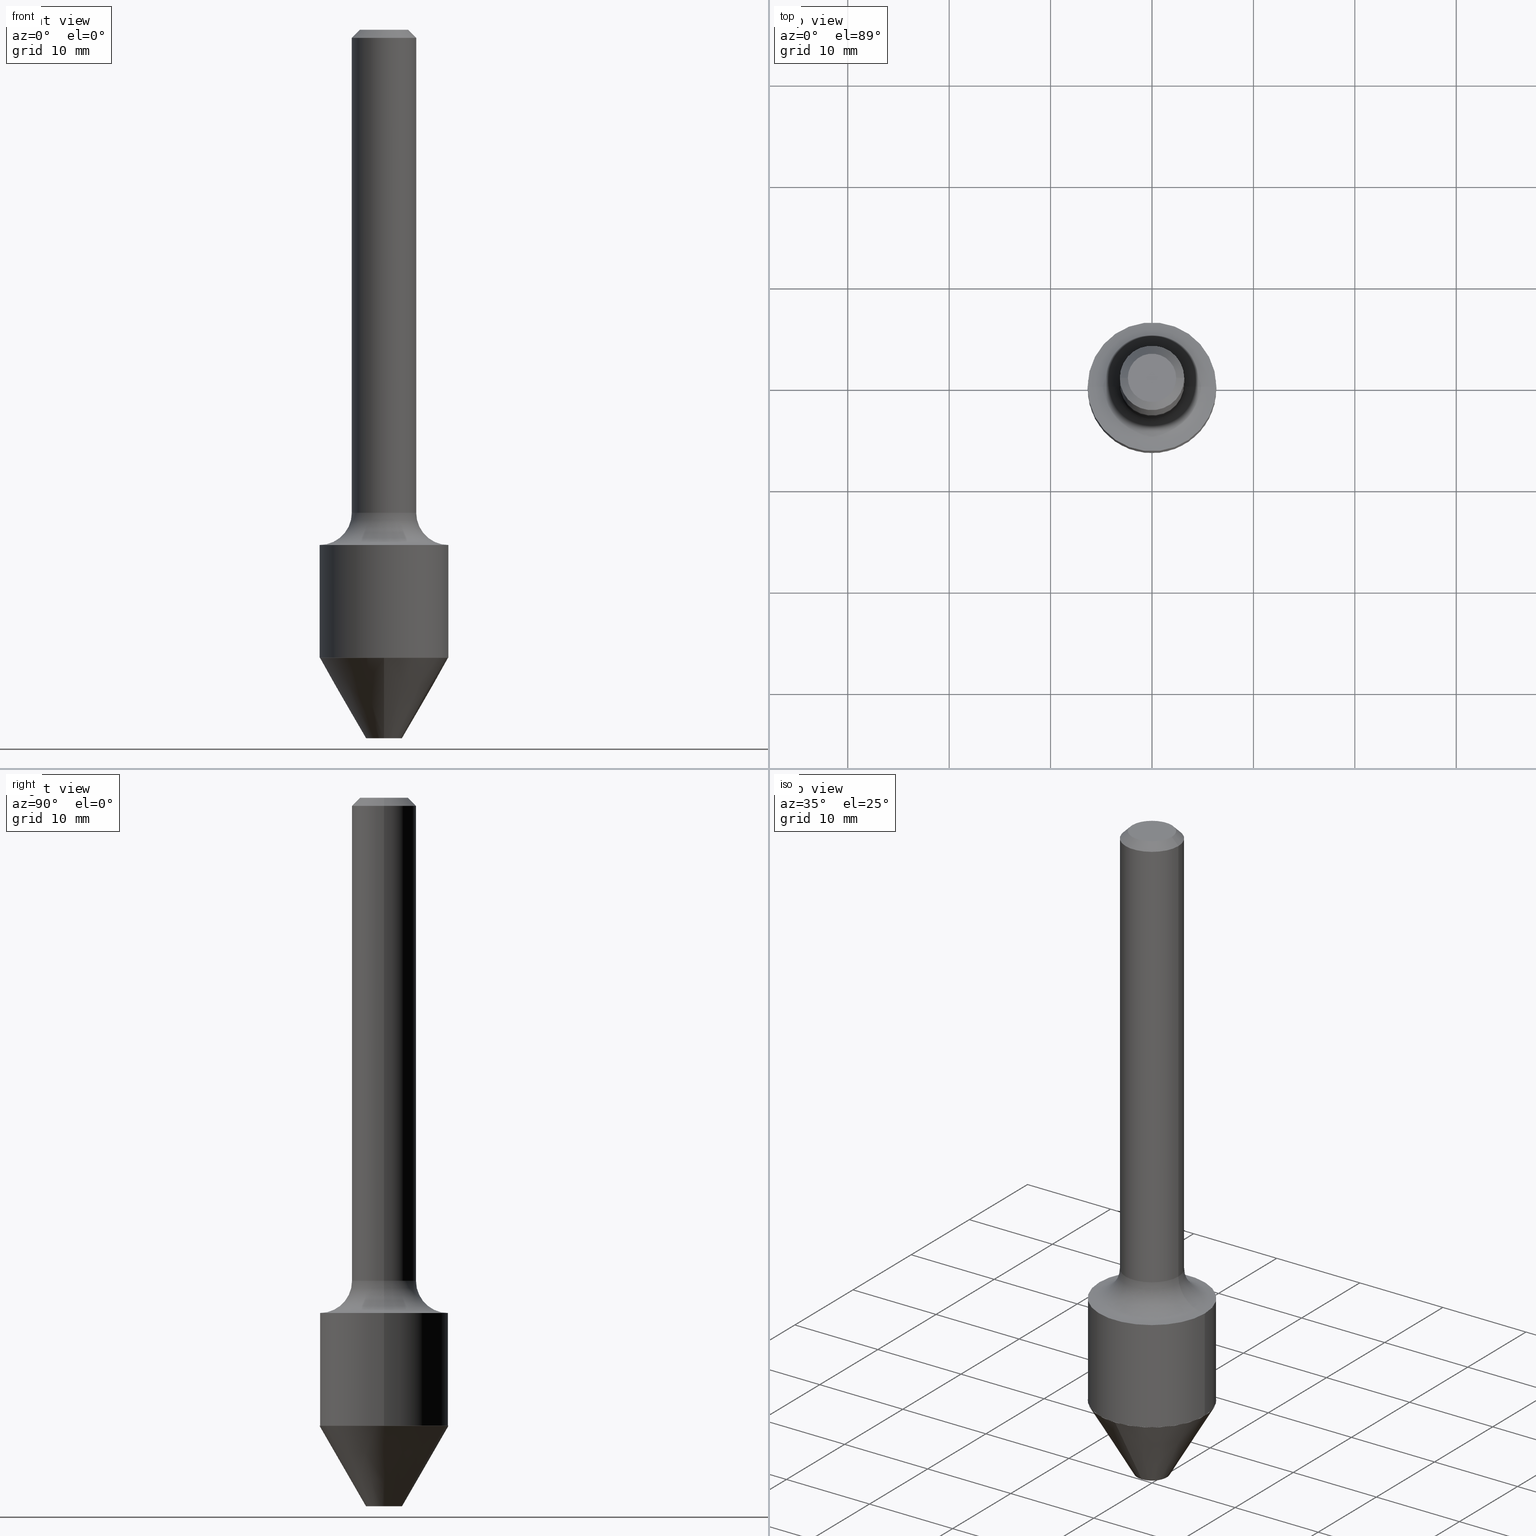
[diagram: canonical four-view strip — front | top / right | iso, engineering-drawing reading convention]
A machine part, canonical four-view strip (front | top / right | iso — engineering-drawing reading convention). The complete STEP part file that produces these views, byte-faithful:
ISO-10303-21;
HEADER;
FILE_DESCRIPTION (( 'STEP AP203' ),
    '1' );
FILE_NAME ('74161.STEP',
    '2025-06-20T12:29:18',
    ( '' ),
    ( '' ),
    'SwSTEP 2.0',
    'SolidWorks 2024',
    '' );
FILE_SCHEMA (( 'CONFIG_CONTROL_DESIGN' ));
ENDSEC;

DATA;
#1 = DIRECTION ( 'NONE',  ( 1.000000000000000000, -6.982962677686269077E-15, 4.883557194083112901E-29 ) ) ;
#2 = VERTEX_POINT ( 'NONE', #326 ) ;
#3 = CYLINDRICAL_SURFACE ( 'NONE', #356, 0.1250000000000001110 ) ;
#4 = CARTESIAN_POINT ( 'NONE',  ( 0.000000000000000000, 0.000000000000000000, 0.000000000000000000 ) ) ;
#5 = CIRCLE ( 'NONE', #360, 0.2499999999999999722 ) ;
#6 = EDGE_CURVE ( 'NONE', #411, #233, #375, .T. ) ;
#7 = CARTESIAN_POINT ( 'NONE',  ( 0.2500000000000000000, -8.728703347107857054E-15, -1.999999999999999778 ) ) ;
#8 = PERSON_AND_ORGANIZATION ( #138, #330 ) ;
#9 = CARTESIAN_POINT ( 'NONE',  ( -0.1250000000000000000, 7.639361169388764871E-16, -0.03120000000000019980 ) ) ;
#10 = LOCAL_TIME ( 8, 29, 18.00000000000000000, #97 ) ;
#11 = CARTESIAN_POINT ( 'NONE',  ( -0.2494999999999999718, -6.735838435193878049E-15, -2.437730854637629729 ) ) ;
#12 = CARTESIAN_POINT ( 'NONE',  ( 7.629862675297674822E-31, -1.089342177719068394E-16, -0.03120000000000019980 ) ) ;
#13 = CALENDAR_DATE ( 2025, 20, 6 ) ;
#14 = DIRECTION ( 'NONE',  ( 1.000000000000000000, -6.982962677686266711E-15, 4.876176775795935793E-29 ) ) ;
#15 = AXIS2_PLACEMENT_3D ( 'NONE', #302, #289, #132 ) ;
#16 = VECTOR ( 'NONE', #380, 39.37007874015748143 ) ;
#17 = CARTESIAN_POINT ( 'NONE',  ( 4.585254011597131119E-29, -6.546527510330898707E-15, -1.875000000000000000 ) ) ;
#18 = DIRECTION ( 'NONE',  ( -6.982962677686265922E-15, -1.000000000000000000, 0.000000000000000000 ) ) ;
#19 = ADVANCED_FACE ( 'NONE', ( #46 ), #3, .T. ) ;
#20 = AXIS2_PLACEMENT_3D ( 'NONE', #86, #247, #207 ) ;
#21 = DIRECTION ( 'NONE',  ( -6.982962677686266711E-15, -1.000000000000000000, 3.284787166730576226E-15 ) ) ;
#22 = FACE_OUTER_BOUND ( 'NONE', #354, .T. ) ;
#23 = CIRCLE ( 'NONE', #156, 0.2499999999999999722 ) ;
#24 = EDGE_CURVE ( 'NONE', #269, #437, #61, .T. ) ;
#25 = APPROVAL_ROLE ( '' ) ;
#26 = ORIENTED_EDGE ( 'NONE', *, *, #218, .T. ) ;
#27 = DIRECTION ( 'NONE',  ( -2.445468806185136597E-29, 3.491481338843145583E-15, 1.000000000000000000 ) ) ;
#28 = CARTESIAN_POINT ( 'NONE',  ( -0.2500000000000000000, -5.206605838286039123E-15, -1.999999999999999778 ) ) ;
#29 = VERTEX_POINT ( 'NONE', #447 ) ;
#30 = ORIENTED_EDGE ( 'NONE', *, *, #487, .F. ) ;
#31 = CARTESIAN_POINT ( 'NONE',  ( -1.713409374943379590E-15, -0.2495000000000086038, -2.437730854637629285 ) ) ;
#32 = AXIS2_PLACEMENT_3D ( 'NONE', #200, #165, #325 ) ;
#33 = ORIENTED_EDGE ( 'NONE', *, *, #175, .F. ) ;
#34 = ORIENTED_EDGE ( 'NONE', *, *, #344, .T. ) ;
#35 = ADVANCED_FACE ( 'NONE', ( #81 ), #440, .T. ) ;
#36 = CARTESIAN_POINT ( 'NONE',  ( 0.1250000000000002498, -7.419397845041683624E-15, -1.875000000000000000 ) ) ;
#37 = ORIENTED_EDGE ( 'NONE', *, *, #6, .F. ) ;
#38 = DIRECTION ( 'NONE',  ( 1.000000000000000000, -6.982962677686267499E-15, 4.876176775795936353E-29 ) ) ;
#39 = CONICAL_SURFACE ( 'NONE', #272, 0.2495000000000000551, 0.7853981633963555975 ) ;
#40 = COORDINATED_UNIVERSAL_TIME_OFFSET ( 5, 0, .BEHIND. ) ;
#41 = CARTESIAN_POINT ( 'NONE',  ( -0.2500000000000000000, -4.770170670930647453E-15, -1.875000000000000000 ) ) ;
#42 = ORIENTED_EDGE ( 'NONE', *, *, #225, .F. ) ;
#43 = DIRECTION ( 'NONE',  ( -6.982962677686265922E-15, -1.000000000000000000, 0.000000000000000000 ) ) ;
#44 = AXIS2_PLACEMENT_3D ( 'NONE', #204, #474, #445 ) ;
#45 = DIRECTION ( 'NONE',  ( -1.000000000000000000, 7.105427357601001859E-15, 0.000000000000000000 ) ) ;
#46 = FACE_OUTER_BOUND ( 'NONE', #158, .T. ) ;
#47 = ORIENTED_EDGE ( 'NONE', *, *, #392, .F. ) ;
#48 = AXIS2_PLACEMENT_3D ( 'NONE', #264, #425, #507 ) ;
#49 = LINE ( 'NONE', #376, #142 ) ;
#50 = DIMENSIONAL_EXPONENTS ( 1.000000000000000000, 0.000000000000000000, 0.000000000000000000, 0.000000000000000000, 0.000000000000000000, 0.000000000000000000, 0.000000000000000000 ) ;
#51 = VECTOR ( 'NONE', #320, 39.37007874015748143 ) ;
#52 = COORDINATED_UNIVERSAL_TIME_OFFSET ( 5, 0, .BEHIND. ) ;
#53 = FACE_OUTER_BOUND ( 'NONE', #54, .T. ) ;
#54 = EDGE_LOOP ( 'NONE', ( #515, #182, #37, #232 ) ) ;
#55 = DIRECTION ( 'NONE',  ( -6.982962677686265922E-15, -1.000000000000000000, 3.278217592397119806E-15 ) ) ;
#56 = VECTOR ( 'NONE', #328, 39.37007874015748143 ) ;
#57 = EDGE_CURVE ( 'NONE', #437, #269, #211, .T. ) ;
#58 = CARTESIAN_POINT ( 'NONE',  ( 0.2494999999999999718, -1.025354097617216170E-14, -2.437730854637629729 ) ) ;
#59 = APPROVAL_STATUS ( 'not_yet_approved' ) ;
#60 = CIRCLE ( 'NONE', #70, 0.07000000000000006217 ) ;
#61 = CIRCLE ( 'NONE', #489, 0.09379999999999999449 ) ;
#62 = DIRECTION ( 'NONE',  ( -2.445468806185136597E-29, 3.491481338843145583E-15, 1.000000000000000000 ) ) ;
#63 = EDGE_CURVE ( 'NONE', #233, #411, #303, .T. ) ;
#64 = ORIENTED_EDGE ( 'NONE', *, *, #171, .F. ) ;
#65 = LINE ( 'NONE', #497, #297 ) ;
#66 = CIRCLE ( 'NONE', #377, 0.1250000000000000000 ) ;
#67 = FACE_OUTER_BOUND ( 'NONE', #350, .T. ) ;
#68 = VERTEX_POINT ( 'NONE', #478 ) ;
#69 = DIRECTION ( 'NONE',  ( -2.438088387897960049E-29, 3.491481338843145188E-15, 1.000000000000000000 ) ) ;
#70 = AXIS2_PLACEMENT_3D ( 'NONE', #243, #405, #43 ) ;
#71 = ORIENTED_EDGE ( 'NONE', *, *, #112, .T. ) ;
#72 = EDGE_CURVE ( 'NONE', #29, #471, #162, .T. ) ;
#73 = AXIS2_PLACEMENT_3D ( 'NONE', #17, #453, #491 ) ;
#74 = EDGE_LOOP ( 'NONE', ( #313, #304, #511, #462 ) ) ;
#75 = EDGE_CURVE ( 'NONE', #399, #2, #185, .T. ) ;
#76 = ORIENTED_EDGE ( 'NONE', *, *, #250, .T. ) ;
#77 = CARTESIAN_POINT ( 'NONE',  ( -0.2499999999999999722, -5.969897523152902591E-15, -2.437230854637630006 ) ) ;
#78 = EDGE_CURVE ( 'NONE', #123, #399, #336, .T. ) ;
#79 = CARTESIAN_POINT ( 'NONE',  ( 5.960172028488266116E-29, -8.509546047420017313E-15, -2.437230854637630006 ) ) ;
#80 = ORIENTED_EDGE ( 'NONE', *, *, #487, .T. ) ;
#81 = FACE_OUTER_BOUND ( 'NONE', #457, .T. ) ;
#82 = LINE ( 'NONE', #322, #124 ) ;
#83 = DIRECTION ( 'NONE',  ( -2.445468806185136597E-29, 3.491481338843145583E-15, 1.000000000000000000 ) ) ;
#84 = DESIGN_CONTEXT ( 'detailed design', #431, 'design' ) ;
#85 = LOCAL_TIME ( 8, 29, 18.00000000000000000, #52 ) ;
#86 = CARTESIAN_POINT ( 'NONE',  ( 5.939504430515662560E-29, -8.542639989971778018E-15, -2.437730854637629729 ) ) ;
#87 = CARTESIAN_POINT ( 'NONE',  ( 4.890937612370272633E-29, -6.982962677686290376E-15, -1.999999999999999778 ) ) ;
#88 = APPROVAL_DATE_TIME ( #287, #179 ) ;
#89 = PERSON_AND_ORGANIZATION ( #138, #330 ) ;
#90 = DIRECTION ( 'NONE',  ( -2.445468806185136597E-29, 3.491481338843145583E-15, 1.000000000000000000 ) ) ;
#91 = CARTESIAN_POINT ( 'NONE',  ( 4.585254011597131119E-29, -6.546527510330898707E-15, -1.875000000000000000 ) ) ;
#92 = VECTOR ( 'NONE', #386, 39.37007874015748143 ) ;
#93 = COORDINATED_UNIVERSAL_TIME_OFFSET ( 5, 0, .BEHIND. ) ;
#94 = CALENDAR_DATE ( 2025, 20, 6 ) ;
#95 = ORIENTED_EDGE ( 'NONE', *, *, #140, .F. ) ;
#96 = DIRECTION ( 'NONE',  ( -1.000000000000000000, 6.982962677686265922E-15, -4.876176775795935793E-29 ) ) ;
#97 = COORDINATED_UNIVERSAL_TIME_OFFSET ( 5, 0, .BEHIND. ) ;
#98 = FACE_OUTER_BOUND ( 'NONE', #310, .T. ) ;
#99 = CIRCLE ( 'NONE', #492, 0.1250000000000000000 ) ;
#100 = PLANE ( 'NONE',  #231 ) ;
#101 = ORIENTED_EDGE ( 'NONE', *, *, #112, .F. ) ;
#102 = APPROVAL_PERSON_ORGANIZATION ( #249, #179, #176 ) ;
#103 = DIRECTION ( 'NONE',  ( -2.445468806185136597E-29, 3.491481338843145583E-15, 1.000000000000000000 ) ) ;
#104 = FACE_OUTER_BOUND ( 'NONE', #470, .T. ) ;
#105 = DIRECTION ( 'NONE',  ( -2.534660151122198642E-29, 3.363754256437179045E-15, 1.000000000000000000 ) ) ;
#106 = CC_DESIGN_PERSON_AND_ORGANIZATION_ASSIGNMENT ( #198, #362, ( #349 ) ) ;
#107 = AXIS2_PLACEMENT_3D ( 'NONE', #502, #27, #223 ) ;
#108 = ORIENTED_EDGE ( 'NONE', *, *, #57, .F. ) ;
#109 = DIRECTION ( 'NONE',  ( -2.445468806185136597E-29, 3.491481338843145583E-15, 1.000000000000000000 ) ) ;
#110 = ORIENTED_EDGE ( 'NONE', *, *, #171, .T. ) ;
#111 = AXIS2_PLACEMENT_3D ( 'NONE', #4, #170, #291 ) ;
#112 = EDGE_CURVE ( 'NONE', #68, #29, #467, .T. ) ;
#113 = ORIENTED_EDGE ( 'NONE', *, *, #299, .F. ) ;
#114 = CIRCLE ( 'NONE', #466, 0.1249999999999996947 ) ;
#115 = CIRCLE ( 'NONE', #414, 0.2495000000000000551 ) ;
#116 = ORIENTED_EDGE ( 'NONE', *, *, #398, .F. ) ;
#117 = EDGE_CURVE ( 'NONE', #351, #233, #504, .T. ) ;
#118 = ORIENTED_EDGE ( 'NONE', *, *, #78, .T. ) ;
#119 = FACE_OUTER_BOUND ( 'NONE', #228, .T. ) ;
#120 = ORIENTED_EDGE ( 'NONE', *, *, #436, .T. ) ;
#121 = LENGTH_MEASURE_WITH_UNIT ( LENGTH_MEASURE( 0.02539999999999999897 ), #479 );
#122 = COORDINATED_UNIVERSAL_TIME_OFFSET ( 5, 0, .BEHIND. ) ;
#123 = VERTEX_POINT ( 'NONE', #347 ) ;
#124 = VECTOR ( 'NONE', #252, 39.37007874015748143 ) ;
#125 = DIRECTION ( 'NONE',  ( -2.445468806185136597E-29, 3.491481338843145583E-15, 1.000000000000000000 ) ) ;
#126 = CALENDAR_DATE ( 2025, 20, 6 ) ;
#127 = ADVANCED_FACE ( 'NONE', ( #98 ), #39, .T. ) ;
#128 = CARTESIAN_POINT ( 'NONE',  ( 7.629862675297674822E-31, -1.089342177719068394E-16, -0.03120000000000019980 ) ) ;
#129 = DIRECTION ( 'NONE',  ( 0.7071067811865454633, -7.319954787623248157E-15, -0.7071067811865495711 ) ) ;
#130 = APPROVAL ( #59, 'UNSPECIFIED' ) ;
#131 = ADVANCED_BREP_SHAPE_REPRESENTATION ( '74161', ( #366, #194, #111 ), #341 ) ;
#132 = DIRECTION ( 'NONE',  ( 6.982962677686265922E-15, 1.000000000000000000, -3.363754256437178651E-15 ) ) ;
#133 = AXIS2_PLACEMENT_3D ( 'NONE', #430, #69, #391 ) ;
#134 = EDGE_CURVE ( 'NONE', #471, #191, #150, .T. ) ;
#135 = APPROVAL_DATE_TIME ( #495, #130 ) ;
#136 = ORIENTED_EDGE ( 'NONE', *, *, #317, .F. ) ;
#137 = DIRECTION ( 'NONE',  ( 3.552713678800711555E-15, 0.5000000000000357492, 0.8660254037844178354 ) ) ;
#138 = PERSON ( 'UNSPECIFIED', 'UNSPECIFIED', 'UNSPECIFIED', ('UNSPECIFIED'), ('UNSPECIFIED'), ('UNSPECIFIED') ) ;
#139 = DIRECTION ( 'NONE',  ( 1.000000000000000000, -6.982962677686267499E-15, 0.000000000000000000 ) ) ;
#140 = EDGE_CURVE ( 'NONE', #435, #363, #115, .T. ) ;
#141 = CARTESIAN_POINT ( 'NONE',  ( -0.2500000000000000000, 1.776356839400250465E-15, -1.229733772563726445E-29 ) ) ;
#142 = VECTOR ( 'NONE', #419, 39.37007874015748143 ) ;
#143 = ORIENTED_EDGE ( 'NONE', *, *, #318, .T. ) ;
#144 = LINE ( 'NONE', #338, #516 ) ;
#145 = ORIENTED_EDGE ( 'NONE', *, *, #505, .T. ) ;
#146 = FACE_OUTER_BOUND ( 'NONE', #151, .T. ) ;
#147 = CYLINDRICAL_SURFACE ( 'NONE', #282, 0.2500000000000000000 ) ;
#148 = ORIENTED_EDGE ( 'NONE', *, *, #218, .F. ) ;
#149 = VECTOR ( 'NONE', #275, 39.37007874015748143 ) ;
#150 = CIRCLE ( 'NONE', #394, 0.2499999999999996947 ) ;
#151 = EDGE_LOOP ( 'NONE', ( #513, #76, #357, #468 ) ) ;
#152 = EDGE_CURVE ( 'NONE', #191, #471, #222, .T. ) ;
#153 = VERTEX_POINT ( 'NONE', #506 ) ;
#154 = ADVANCED_FACE ( 'NONE', ( #146 ), #181, .T. ) ;
#155 = EDGE_LOOP ( 'NONE', ( #143, #34, #315, #509 ) ) ;
#156 = AXIS2_PLACEMENT_3D ( 'NONE', #79, #276, #196 ) ;
#157 = CARTESIAN_POINT ( 'NONE',  ( 0.2494999999999999718, -1.025354097617216170E-14, -2.437730854637629729 ) ) ;
#158 = EDGE_LOOP ( 'NONE', ( #277, #118, #337, #496 ) ) ;
#159 = APPROVAL_DATE_TIME ( #230, #426 ) ;
#160 = FACE_OUTER_BOUND ( 'NONE', #368, .T. ) ;
#161 = CARTESIAN_POINT ( 'NONE',  ( 0.1250000000000000000, -9.664964674933483956E-16, -0.03120000000000019980 ) ) ;
#162 = LINE ( 'NONE', #248, #51 ) ;
#163 = APPROVAL_STATUS ( 'not_yet_approved' ) ;
#164 = LOCAL_TIME ( 8, 29, 18.00000000000000000, #93 ) ;
#165 = DIRECTION ( 'NONE',  ( -2.534660151122198642E-29, 3.363754256437179045E-15, 1.000000000000000000 ) ) ;
#166 = CARTESIAN_POINT ( 'NONE',  ( 4.890937612370272633E-29, -6.982962677686290376E-15, -1.999999999999999778 ) ) ;
#167 = CARTESIAN_POINT ( 'NONE',  ( 1.743994928752203353E-15, 0.2494999999999915341, -2.437730854637630618 ) ) ;
#168 = DIRECTION ( 'NONE',  ( 6.982962677686265922E-15, 1.000000000000000000, -3.363754256437178651E-15 ) ) ;
#169 = AXIS2_PLACEMENT_3D ( 'NONE', #422, #103, #343 ) ;
#170 = DIRECTION ( 'NONE',  ( 0.000000000000000000, 0.000000000000000000, 1.000000000000000000 ) ) ;
#171 = EDGE_CURVE ( 'NONE', #399, #411, #114, .T. ) ;
#172 = DIRECTION ( 'NONE',  ( -2.445468806185136877E-29, 3.491481338843145188E-15, 1.000000000000000000 ) ) ;
#173 =( NAMED_UNIT ( * ) PLANE_ANGLE_UNIT ( ) SI_UNIT ( $, .RADIAN. ) );
#174 = PERSON_AND_ORGANIZATION_ROLE ( 'classification_officer' ) ;
#175 = EDGE_CURVE ( 'NONE', #351, #387, #5, .T. ) ;
#176 = APPROVAL_ROLE ( '' ) ;
#177 = TOROIDAL_SURFACE ( 'NONE', #73, 0.2500000000000000000, 0.1249999999999996947 ) ;
#178 = DIRECTION ( 'NONE',  ( 6.982962677686266711E-15, 1.000000000000000000, -3.284787166730576226E-15 ) ) ;
#179 = APPROVAL ( #327, 'UNSPECIFIED' ) ;
#180 = DIRECTION ( 'NONE',  ( -2.534660151122198642E-29, 3.363754256437179045E-15, 1.000000000000000000 ) ) ;
#181 = CYLINDRICAL_SURFACE ( 'NONE', #169, 0.1250000000000001110 ) ;
#182 = ORIENTED_EDGE ( 'NONE', *, *, #117, .T. ) ;
#183 = CIRCLE ( 'NONE', #314, 0.2494999999999999718 ) ;
#184 = CARTESIAN_POINT ( 'NONE',  ( 5.939504430515662560E-29, -8.542639989971778018E-15, -2.437730854637629729 ) ) ;
#185 = LINE ( 'NONE', #379, #493 ) ;
#186 = DIRECTION ( 'NONE',  ( -2.445468806185136597E-29, 3.491481338843145583E-15, 1.000000000000000000 ) ) ;
#187 = ORIENTED_EDGE ( 'NONE', *, *, #444, .F. ) ;
#188 = FACE_OUTER_BOUND ( 'NONE', #201, .T. ) ;
#189 = ORIENTED_EDGE ( 'NONE', *, *, #505, .F. ) ;
#190 = VERTEX_POINT ( 'NONE', #58 ) ;
#191 = VERTEX_POINT ( 'NONE', #428 ) ;
#192 = DIRECTION ( 'NONE',  ( 1.000000000000000000, -6.982962677686264344E-15, 0.000000000000000000 ) ) ;
#193 = ORIENTED_EDGE ( 'NONE', *, *, #461, .T. ) ;
#194 = MANIFOLD_SOLID_BREP ( 'Body-Move/Copy2[2]', #234 ) ;
#195 = DIRECTION ( 'NONE',  ( -2.445468806185136597E-29, 3.491481338843145583E-15, 1.000000000000000000 ) ) ;
#196 = DIRECTION ( 'NONE',  ( 1.000000000000000000, -6.982962677686267499E-15, 0.000000000000000000 ) ) ;
#197 = DIRECTION ( 'NONE',  ( 1.000000000000000000, -6.982962677686266711E-15, 4.876421767504995250E-29 ) ) ;
#198 = PERSON_AND_ORGANIZATION ( #138, #330 ) ;
#199 = SECURITY_CLASSIFICATION_LEVEL ( 'unclassified' ) ;
#200 = CARTESIAN_POINT ( 'NONE',  ( 5.940771760591224886E-29, -8.544321867099997850E-15, -2.438230854637630785 ) ) ;
#201 = EDGE_LOOP ( 'NONE', ( #116, #108, #270, #306 ) ) ;
#202 = CC_DESIGN_APPROVAL ( #179, ( #349 ) ) ;
#203 = ADVANCED_FACE ( 'NONE', ( #67 ), #100, .F. ) ;
#204 = CARTESIAN_POINT ( 'NONE',  ( 5.961394762891357797E-29, -8.511291788089438028E-15, -2.437730854637629729 ) ) ;
#205 = CARTESIAN_POINT ( 'NONE',  ( 3.743544432386658428E-46, -5.344789307371216869E-32, -1.530808498934191509E-17 ) ) ;
#206 = APPLICATION_PROTOCOL_DEFINITION ( 'international standard', 'config_control_design', 1994, #431 ) ;
#207 = DIRECTION ( 'NONE',  ( -6.982962677686266711E-15, -1.000000000000000000, 3.284787166730576226E-15 ) ) ;
#208 = CONICAL_SURFACE ( 'NONE', #441, 0.2495000000000000551, 0.7853981633963555975 ) ;
#209 = ADVANCED_FACE ( 'NONE', ( #219 ), #296, .T. ) ;
#210 = PERSON_AND_ORGANIZATION ( #138, #330 ) ;
#211 = CIRCLE ( 'NONE', #331, 0.09379999999999999449 ) ;
#212 = ADVANCED_FACE ( 'NONE', ( #22 ), #208, .T. ) ;
#213 = CALENDAR_DATE ( 2025, 20, 6 ) ;
#214 = ORIENTED_EDGE ( 'NONE', *, *, #24, .T. ) ;
#215 = CARTESIAN_POINT ( 'NONE',  ( 5.939504430515662560E-29, -8.542639989971778018E-15, -2.437730854637629729 ) ) ;
#216 = CARTESIAN_POINT ( 'NONE',  ( 5.940771760591224886E-29, -8.544321867099997850E-15, -2.438230854637630785 ) ) ;
#217 = CLOSED_SHELL ( 'NONE', ( #127, #226, #311, #35, #451, #212 ) ) ;
#218 = EDGE_CURVE ( 'NONE', #363, #471, #144, .T. ) ;
#219 = FACE_OUTER_BOUND ( 'NONE', #74, .T. ) ;
#220 = CC_DESIGN_PERSON_AND_ORGANIZATION_ASSIGNMENT ( #210, #238, ( #280 ) ) ;
#221 = ORIENTED_EDGE ( 'NONE', *, *, #152, .T. ) ;
#222 = CIRCLE ( 'NONE', #402, 0.2499999999999996947 ) ;
#223 = DIRECTION ( 'NONE',  ( 1.000000000000000000, -6.982962677686264344E-15, 0.000000000000000000 ) ) ;
#224 = LINE ( 'NONE', #9, #92 ) ;
#225 = EDGE_CURVE ( 'NONE', #68, #191, #65, .T. ) ;
#226 = ADVANCED_FACE ( 'NONE', ( #294 ), #293, .T. ) ;
#227 = DIRECTION ( 'NONE',  ( 2.438088387897960049E-29, -3.491481338843145188E-15, -1.000000000000000000 ) ) ;
#228 = EDGE_LOOP ( 'NONE', ( #42, #71, #300, #404 ) ) ;
#229 = VERTEX_POINT ( 'NONE', #11 ) ;
#230 = DATE_AND_TIME ( #390, #278 ) ;
#231 = AXIS2_PLACEMENT_3D ( 'NONE', #260, #227, #96 ) ;
#232 = ORIENTED_EDGE ( 'NONE', *, *, #501, .F. ) ;
#233 = VERTEX_POINT ( 'NONE', #28 ) ;
#234 = CLOSED_SHELL ( 'NONE', ( #154, #316, #483, #259, #244, #372, #209, #409, #358, #203, #263, #19 ) ) ;
#235 = PRODUCT_RELATED_PRODUCT_CATEGORY ( 'detail', '', ( #280 ) ) ;
#236 = DIRECTION ( 'NONE',  ( -2.445468806185136597E-29, 3.491481338843145583E-15, 1.000000000000000000 ) ) ;
#237 = ORIENTED_EDGE ( 'NONE', *, *, #444, .T. ) ;
#238 = PERSON_AND_ORGANIZATION_ROLE ( 'design_owner' ) ;
#239 = PLANE ( 'NONE',  #133 ) ;
#240 = AXIS2_PLACEMENT_3D ( 'NONE', #385, #262, #18 ) ;
#241 = DIRECTION ( 'NONE',  ( 7.105427357601001859E-15, 1.000000000000000000, -3.491481338843145583E-15 ) ) ;
#242 = ORIENTED_EDGE ( 'NONE', *, *, #461, .F. ) ;
#243 = CARTESIAN_POINT ( 'NONE',  ( 6.731000589690648611E-29, -9.593036656838451372E-15, -2.750000000000000444 ) ) ;
#244 = ADVANCED_FACE ( 'NONE', ( #255 ), #177, .F. ) ;
#245 = LINE ( 'NONE', #161, #251 ) ;
#246 = CARTESIAN_POINT ( 'NONE',  ( -8.263554953674178180E-29, -3.106609363203786599E-14, -2.750000000000000000 ) ) ;
#247 = DIRECTION ( 'NONE',  ( -2.534660151122198642E-29, 3.363754256437179045E-15, 1.000000000000000000 ) ) ;
#248 = CARTESIAN_POINT ( 'NONE',  ( -1.745740669421504752E-15, -0.2500000000000082157, -2.438230854637629896 ) ) ;
#249 = PERSON_AND_ORGANIZATION ( #138, #330 ) ;
#250 = EDGE_CURVE ( 'NONE', #123, #153, #49, .T. ) ;
#251 = VECTOR ( 'NONE', #129, 39.37007874015748143 ) ;
#252 = DIRECTION ( 'NONE',  ( 4.937700262159153022E-15, 0.7071067811857725260, -0.7071067811873225084 ) ) ;
#253 = DATE_AND_TIME ( #94, #164 ) ;
#254 = CC_DESIGN_APPROVAL ( #426, ( #381 ) ) ;
#255 = FACE_OUTER_BOUND ( 'NONE', #423, .T. ) ;
#256 = DIRECTION ( 'NONE',  ( -2.534660151122198642E-29, 3.363754256437179045E-15, 1.000000000000000000 ) ) ;
#257 = CONICAL_SURFACE ( 'NONE', #32, 0.2499999999999996947, 0.5235987755983368963 ) ;
#258 = DIRECTION ( 'NONE',  ( -2.534660151122198642E-29, 3.363754256437179045E-15, 1.000000000000000000 ) ) ;
#259 = ADVANCED_FACE ( 'NONE', ( #53 ), #147, .T. ) ;
#260 = CARTESIAN_POINT ( 'NONE',  ( 6.550018991669718048E-16, 0.09379999999999999449, -3.351549920781579832E-16 ) ) ;
#261 = ORIENTED_EDGE ( 'NONE', *, *, #225, .T. ) ;
#262 = DIRECTION ( 'NONE',  ( -2.534660151122198642E-29, 3.363754256437179045E-15, 1.000000000000000000 ) ) ;
#263 = ADVANCED_FACE ( 'NONE', ( #188 ), #413, .T. ) ;
#264 = CARTESIAN_POINT ( 'NONE',  ( 7.629862675297674822E-31, -1.089342177719068394E-16, -0.03120000000000019980 ) ) ;
#265 = CONICAL_SURFACE ( 'NONE', #352, 0.2494999999999999718, 0.7853981633975507526 ) ;
#266 = DIRECTION ( 'NONE',  ( 6.982962677686266711E-15, 1.000000000000000000, -3.284787166730576226E-15 ) ) ;
#267 = EDGE_LOOP ( 'NONE', ( #145, #261, #308, #378 ) ) ;
#268 = CARTESIAN_POINT ( 'NONE',  ( 7.629862675297674822E-31, -1.089342177719068394E-16, -0.03120000000000019980 ) ) ;
#269 = VERTEX_POINT ( 'NONE', #486 ) ;
#270 = ORIENTED_EDGE ( 'NONE', *, *, #299, .T. ) ;
#271 = LINE ( 'NONE', #397, #149 ) ;
#272 = AXIS2_PLACEMENT_3D ( 'NONE', #298, #305, #266 ) ;
#273 = EDGE_LOOP ( 'NONE', ( #512, #439, #120, #33 ) ) ;
#274 = CC_DESIGN_PERSON_AND_ORGANIZATION_ASSIGNMENT ( #8, #174, ( #381 ) ) ;
#275 = DIRECTION ( 'NONE',  ( -0.7071067811866199593, 7.493145998870616062E-15, 0.7071067811864750752 ) ) ;
#276 = DIRECTION ( 'NONE',  ( -2.445468806185136597E-29, 3.491481338843145583E-15, 1.000000000000000000 ) ) ;
#277 = ORIENTED_EDGE ( 'NONE', *, *, #250, .F. ) ;
#278 = LOCAL_TIME ( 8, 29, 18.00000000000000000, #122 ) ;
#279 = AXIS2_PLACEMENT_3D ( 'NONE', #246, #407, #168 ) ;
#280 = PRODUCT ( '74161', '74161', '', ( #416 ) ) ;
#281 = ORIENTED_EDGE ( 'NONE', *, *, #57, .T. ) ;
#282 = AXIS2_PLACEMENT_3D ( 'NONE', #464, #186, #348 ) ;
#283 = CARTESIAN_POINT ( 'NONE',  ( -1.745740669421504752E-15, -0.2500000000000082157, -2.438230854637629896 ) ) ;
#284 = DIRECTION ( 'NONE',  ( -2.445468806185136597E-29, 3.491481338843145583E-15, 1.000000000000000000 ) ) ;
#285 = DIRECTION ( 'NONE',  ( -2.445468806185136597E-29, 3.491481338843145583E-15, 1.000000000000000000 ) ) ;
#286 = DIRECTION ( 'NONE',  ( 1.000000000000000000, -6.982962677686266711E-15, 0.000000000000000000 ) ) ;
#287 = DATE_AND_TIME ( #126, #432 ) ;
#288 = AXIS2_PLACEMENT_3D ( 'NONE', #166, #284, #286 ) ;
#289 = DIRECTION ( 'NONE',  ( 2.534660151122198642E-29, -3.363754256437178651E-15, -1.000000000000000000 ) ) ;
#290 = DIRECTION ( 'NONE',  ( 1.000000000000000000, -6.982962677686265922E-15, 0.000000000000000000 ) ) ;
#291 = DIRECTION ( 'NONE',  ( 1.000000000000000000, 0.000000000000000000, 0.000000000000000000 ) ) ;
#292 = DIRECTION ( 'NONE',  ( 1.000000000000000000, -6.982962677686265922E-15, 0.000000000000000000 ) ) ;
#293 = CONICAL_SURFACE ( 'NONE', #369, 0.2499999999999996947, 0.5235987755983368963 ) ;
#294 = FACE_OUTER_BOUND ( 'NONE', #267, .T. ) ;
#295 = EDGE_CURVE ( 'NONE', #153, #2, #66, .T. ) ;
#296 = CYLINDRICAL_SURFACE ( 'NONE', #335, 0.2500000000000000000 ) ;
#297 = VECTOR ( 'NONE', #137, 39.37007874015748854 ) ;
#298 = CARTESIAN_POINT ( 'NONE',  ( 5.939504430515662560E-29, -8.542639989971778018E-15, -2.437730854637629729 ) ) ;
#299 = EDGE_CURVE ( 'NONE', #437, #153, #224, .T. ) ;
#300 = ORIENTED_EDGE ( 'NONE', *, *, #72, .T. ) ;
#301 = DIRECTION ( 'NONE',  ( -4.851104656535662341E-15, -0.7071067811857771890, -0.7071067811873178455 ) ) ;
#302 = CARTESIAN_POINT ( 'NONE',  ( 5.961394762891357797E-29, -8.511291788089439605E-15, -2.437730854637630173 ) ) ;
#303 = CIRCLE ( 'NONE', #508, 0.2500000000000000000 ) ;
#304 = ORIENTED_EDGE ( 'NONE', *, *, #175, .T. ) ;
#305 = DIRECTION ( 'NONE',  ( 2.534660151122198642E-29, -3.363754256437179045E-15, -1.000000000000000000 ) ) ;
#306 = ORIENTED_EDGE ( 'NONE', *, *, #295, .T. ) ;
#307 = AXIS2_PLACEMENT_3D ( 'NONE', #450, #90, #292 ) ;
#308 = ORIENTED_EDGE ( 'NONE', *, *, #134, .F. ) ;
#309 = VECTOR ( 'NONE', #172, 39.37007874015748143 ) ;
#310 = EDGE_LOOP ( 'NONE', ( #30, #26, #396, #187 ) ) ;
#311 = ADVANCED_FACE ( 'NONE', ( #332 ), #415, .F. ) ;
#312 = APPLICATION_CONTEXT ( 'configuration controlled 3d designs of mechanical parts and assemblies' ) ;
#313 = ORIENTED_EDGE ( 'NONE', *, *, #117, .F. ) ;
#314 = AXIS2_PLACEMENT_3D ( 'NONE', #395, #109, #473 ) ;
#315 = ORIENTED_EDGE ( 'NONE', *, *, #417, .F. ) ;
#316 = ADVANCED_FACE ( 'NONE', ( #104 ), #503, .T. ) ;
#317 = EDGE_CURVE ( 'NONE', #229, #190, #345, .T. ) ;
#318 = EDGE_CURVE ( 'NONE', #190, #229, #183, .T. ) ;
#319 = LINE ( 'NONE', #157, #56 ) ;
#320 = DIRECTION ( 'NONE',  ( -3.491481338843385002E-15, -0.5000000000000300870, 0.8660254037844212771 ) ) ;
#321 = APPROVAL_PERSON_ORGANIZATION ( #383, #130, #25 ) ;
#322 = CARTESIAN_POINT ( 'NONE',  ( 1.742249188082783230E-15, 0.2494999999999915341, -2.437730854637630618 ) ) ;
#323 = CARTESIAN_POINT ( 'NONE',  ( 3.743544432386658428E-46, -5.344789307371216869E-32, -1.530808498934191509E-17 ) ) ;
#324 = AXIS2_PLACEMENT_3D ( 'NONE', #41, #241, #45 ) ;
#325 = DIRECTION ( 'NONE',  ( -6.982962677686265922E-15, -1.000000000000000000, 3.278217592397119806E-15 ) ) ;
#326 = CARTESIAN_POINT ( 'NONE',  ( 0.1250000000000000000, -9.664964674933483956E-16, -0.03120000000000019980 ) ) ;
#327 = APPROVAL_STATUS ( 'not_yet_approved' ) ;
#328 = DIRECTION ( 'NONE',  ( 0.7071067811866199593, -2.468850131083015945E-15, 0.7071067811864750752 ) ) ;
#329 =( NAMED_UNIT ( * ) SI_UNIT ( $, .STERADIAN. ) SOLID_ANGLE_UNIT ( ) );
#330 = ORGANIZATION ( 'UNSPECIFIED', 'UNSPECIFIED', '' ) ;
#331 = AXIS2_PLACEMENT_3D ( 'NONE', #205, #125, #197 ) ;
#332 = FACE_OUTER_BOUND ( 'NONE', #454, .T. ) ;
#333 = CC_DESIGN_DATE_AND_TIME_ASSIGNMENT ( #253, #374, ( #381 ) ) ;
#334 = PERSON_AND_ORGANIZATION ( #138, #330 ) ;
#335 = AXIS2_PLACEMENT_3D ( 'NONE', #346, #382, #14 ) ;
#336 = CIRCLE ( 'NONE', #107, 0.1250000000000002498 ) ;
#337 = ORIENTED_EDGE ( 'NONE', *, *, #75, .T. ) ;
#338 = CARTESIAN_POINT ( 'NONE',  ( -1.711694250443938019E-15, -0.2495000000000086038, -2.437730854637629285 ) ) ;
#339 = DIRECTION ( 'NONE',  ( -2.445468806185136597E-29, 3.491481338843145583E-15, 1.000000000000000000 ) ) ;
#340 = DIRECTION ( 'NONE',  ( -2.445468806185136877E-29, 3.491481338843145188E-15, 1.000000000000000000 ) ) ;
#341 =( GEOMETRIC_REPRESENTATION_CONTEXT ( 3 ) GLOBAL_UNCERTAINTY_ASSIGNED_CONTEXT ( ( #449 ) ) GLOBAL_UNIT_ASSIGNED_CONTEXT ( ( #482, #173, #329 ) ) REPRESENTATION_CONTEXT ( 'NONE', 'WORKASPACE' ) );
#342 = DATE_AND_TIME ( #213, #10 ) ;
#343 = DIRECTION ( 'NONE',  ( 1.000000000000000000, -6.982962677686267499E-15, 4.876176775795936353E-29 ) ) ;
#344 = EDGE_CURVE ( 'NONE', #229, #351, #271, .T. ) ;
#345 = CIRCLE ( 'NONE', #307, 0.2494999999999999718 ) ;
#346 = CARTESIAN_POINT ( 'NONE',  ( 0.000000000000000000, 0.000000000000000000, 0.000000000000000000 ) ) ;
#347 = CARTESIAN_POINT ( 'NONE',  ( -0.1250000000000002498, -5.432477464458405904E-15, -1.875000000000000000 ) ) ;
#348 = DIRECTION ( 'NONE',  ( 1.000000000000000000, -6.982962677686266711E-15, 4.876176775795935793E-29 ) ) ;
#349 = PRODUCT_DEFINITION ( 'UNKNOWN', '', #488, #84 ) ;
#350 = EDGE_LOOP ( 'NONE', ( #281, #214 ) ) ;
#351 = VERTEX_POINT ( 'NONE', #77 ) ;
#352 = AXIS2_PLACEMENT_3D ( 'NONE', #367, #406, #290 ) ;
#353 = FACE_OUTER_BOUND ( 'NONE', #389, .T. ) ;
#354 = EDGE_LOOP ( 'NONE', ( #148, #95, #237, #221 ) ) ;
#355 = EDGE_CURVE ( 'NONE', #2, #153, #99, .T. ) ;
#356 = AXIS2_PLACEMENT_3D ( 'NONE', #485, #443, #38 ) ;
#357 = ORIENTED_EDGE ( 'NONE', *, *, #355, .F. ) ;
#358 = ADVANCED_FACE ( 'NONE', ( #160 ), #239, .F. ) ;
#359 = ORIENTED_EDGE ( 'NONE', *, *, #78, .F. ) ;
#360 = AXIS2_PLACEMENT_3D ( 'NONE', #499, #62, #139 ) ;
#361 = DIRECTION ( 'NONE',  ( -2.445468806185136597E-29, 3.491481338843145583E-15, 1.000000000000000000 ) ) ;
#362 = PERSON_AND_ORGANIZATION_ROLE ( 'creator' ) ;
#363 = VERTEX_POINT ( 'NONE', #31 ) ;
#364 = CC_DESIGN_DATE_AND_TIME_ASSIGNMENT ( #342, #500, ( #349 ) ) ;
#365 = CARTESIAN_POINT ( 'NONE',  ( 0.2499999999999999722, -1.025528671684158399E-14, -2.437230854637630006 ) ) ;
#366 = MANIFOLD_SOLID_BREP ( 'Body-Move/Copy2[1]', #217 ) ;
#367 = CARTESIAN_POINT ( 'NONE',  ( 5.961394762891357797E-29, -8.511291788089438028E-15, -2.437730854637629729 ) ) ;
#368 = EDGE_LOOP ( 'NONE', ( #475, #136 ) ) ;
#369 = AXIS2_PLACEMENT_3D ( 'NONE', #456, #256, #420 ) ;
#370 = CARTESIAN_POINT ( 'NONE',  ( 0.2500000000000000000, -1.745740669421566678E-15, 1.219044193948983948E-29 ) ) ;
#371 = APPLICATION_PROTOCOL_DEFINITION ( 'international standard', 'config_control_design', 1994, #312 ) ;
#372 = ADVANCED_FACE ( 'NONE', ( #353 ), #459, .F. ) ;
#373 = DIRECTION ( 'NONE',  ( 2.445468806185136597E-29, -3.491481338843145583E-15, -1.000000000000000000 ) ) ;
#374 = DATE_TIME_ROLE ( 'classification_date' ) ;
#375 = CIRCLE ( 'NONE', #288, 0.2500000000000000000 ) ;
#376 = CARTESIAN_POINT ( 'NONE',  ( -0.1250000000000001110, 8.881784197001260212E-16, -6.148668862818637832E-30 ) ) ;
#377 = AXIS2_PLACEMENT_3D ( 'NONE', #128, #339, #498 ) ;
#378 = ORIENTED_EDGE ( 'NONE', *, *, #72, .F. ) ;
#379 = CARTESIAN_POINT ( 'NONE',  ( 0.1250000000000001110, -8.728703347107842263E-16, 6.095220969744926047E-30 ) ) ;
#380 = DIRECTION ( 'NONE',  ( -2.445468806185136877E-29, 3.491481338843145188E-15, 1.000000000000000000 ) ) ;
#381 = SECURITY_CLASSIFICATION ( '', '', #199 ) ;
#382 = DIRECTION ( 'NONE',  ( -2.445468806185136597E-29, 3.491481338843145583E-15, 1.000000000000000000 ) ) ;
#383 = PERSON_AND_ORGANIZATION ( #138, #330 ) ;
#384 = ORIENTED_EDGE ( 'NONE', *, *, #24, .F. ) ;
#385 = CARTESIAN_POINT ( 'NONE',  ( 6.731000589690648611E-29, -9.593036656838451372E-15, -2.750000000000000444 ) ) ;
#386 = DIRECTION ( 'NONE',  ( -0.7071067811865454633, 2.468850131082235367E-15, -0.7071067811865495711 ) ) ;
#387 = VERTEX_POINT ( 'NONE', #365 ) ;
#388 = APPROVAL_PERSON_ORGANIZATION ( #334, #426, #480 ) ;
#389 = EDGE_LOOP ( 'NONE', ( #242, #47, #110, #469 ) ) ;
#390 = CALENDAR_DATE ( 2025, 20, 6 ) ;
#391 = DIRECTION ( 'NONE',  ( 1.000000000000000000, -6.982962677686265922E-15, 4.876176775795935793E-29 ) ) ;
#392 = EDGE_CURVE ( 'NONE', #399, #123, #472, .T. ) ;
#393 = ORIENTED_EDGE ( 'NONE', *, *, #398, .T. ) ;
#394 = AXIS2_PLACEMENT_3D ( 'NONE', #465, #105, #55 ) ;
#395 = CARTESIAN_POINT ( 'NONE',  ( 5.961394762891357797E-29, -8.511291788089438028E-15, -2.437730854637629729 ) ) ;
#396 = ORIENTED_EDGE ( 'NONE', *, *, #134, .T. ) ;
#397 = CARTESIAN_POINT ( 'NONE',  ( -0.2494999999999999718, -6.738487662367988461E-15, -2.437730854637629729 ) ) ;
#398 = EDGE_CURVE ( 'NONE', #269, #2, #245, .T. ) ;
#399 = VERTEX_POINT ( 'NONE', #36 ) ;
#400 = CARTESIAN_POINT ( 'NONE',  ( 4.585254011597131119E-29, -6.546527510330898707E-15, -1.875000000000000000 ) ) ;
#401 = ORIENTED_EDGE ( 'NONE', *, *, #355, .T. ) ;
#402 = AXIS2_PLACEMENT_3D ( 'NONE', #216, #258, #463 ) ;
#403 = FACE_OUTER_BOUND ( 'NONE', #273, .T. ) ;
#404 = ORIENTED_EDGE ( 'NONE', *, *, #152, .F. ) ;
#405 = DIRECTION ( 'NONE',  ( -2.534660151122198642E-29, 3.363754256437179045E-15, 1.000000000000000000 ) ) ;
#406 = DIRECTION ( 'NONE',  ( -2.445468806185136597E-29, 3.491481338843145583E-15, 1.000000000000000000 ) ) ;
#407 = DIRECTION ( 'NONE',  ( 2.534660151122198642E-29, -3.363754256437178651E-15, -1.000000000000000000 ) ) ;
#408 = PERSON_AND_ORGANIZATION ( #138, #330 ) ;
#409 = ADVANCED_FACE ( 'NONE', ( #403 ), #265, .T. ) ;
#410 = LINE ( 'NONE', #370, #309 ) ;
#411 = VERTEX_POINT ( 'NONE', #7 ) ;
#412 = PERSON_AND_ORGANIZATION_ROLE ( 'design_supplier' ) ;
#413 = CONICAL_SURFACE ( 'NONE', #427, 0.1250000000000000000, 0.7853981633974453924 ) ;
#414 = AXIS2_PLACEMENT_3D ( 'NONE', #215, #180, #21 ) ;
#415 = PLANE ( 'NONE',  #15 ) ;
#416 = MECHANICAL_CONTEXT ( 'NONE', #312, 'mechanical' ) ;
#417 = EDGE_CURVE ( 'NONE', #387, #351, #23, .T. ) ;
#418 = CONICAL_SURFACE ( 'NONE', #44, 0.2494999999999999718, 0.7853981633975507526 ) ;
#419 = DIRECTION ( 'NONE',  ( -2.445468806185136877E-29, 3.491481338843145188E-15, 1.000000000000000000 ) ) ;
#420 = DIRECTION ( 'NONE',  ( -6.982962677686265922E-15, -1.000000000000000000, 3.278217592397119806E-15 ) ) ;
#421 = CARTESIAN_POINT ( 'NONE',  ( 0.2500000000000000000, -8.292268179752465385E-15, -1.875000000000000000 ) ) ;
#422 = CARTESIAN_POINT ( 'NONE',  ( 0.000000000000000000, 0.000000000000000000, 0.000000000000000000 ) ) ;
#423 = EDGE_LOOP ( 'NONE', ( #359, #193, #429, #64 ) ) ;
#424 = DIRECTION ( 'NONE',  ( 2.534660151122198642E-29, -3.363754256437179045E-15, -1.000000000000000000 ) ) ;
#425 = DIRECTION ( 'NONE',  ( 2.445468806185136597E-29, -3.491481338843145583E-15, -1.000000000000000000 ) ) ;
#426 = APPROVAL ( #163, 'UNSPECIFIED' ) ;
#427 = AXIS2_PLACEMENT_3D ( 'NONE', #12, #373, #494 ) ;
#428 = CARTESIAN_POINT ( 'NONE',  ( 1.776356839400307657E-15, 0.2499999999999911460, -2.438230854637631673 ) ) ;
#429 = ORIENTED_EDGE ( 'NONE', *, *, #63, .T. ) ;
#430 = CARTESIAN_POINT ( 'NONE',  ( 5.961394762891357797E-29, -8.511291788089438028E-15, -2.437730854637629729 ) ) ;
#431 = APPLICATION_CONTEXT ( 'configuration controlled 3d designs of mechanical parts and assemblies' ) ;
#432 = LOCAL_TIME ( 8, 29, 18.00000000000000000, #40 ) ;
#433 = CIRCLE ( 'NONE', #20, 0.2495000000000000551 ) ;
#434 = ORIENTED_EDGE ( 'NONE', *, *, #140, .T. ) ;
#435 = VERTEX_POINT ( 'NONE', #167 ) ;
#436 = EDGE_CURVE ( 'NONE', #190, #387, #319, .T. ) ;
#437 = VERTEX_POINT ( 'NONE', #477 ) ;
#438 = CC_DESIGN_APPROVAL ( #130, ( #488 ) ) ;
#439 = ORIENTED_EDGE ( 'NONE', *, *, #317, .T. ) ;
#440 = PLANE ( 'NONE',  #279 ) ;
#441 = AXIS2_PLACEMENT_3D ( 'NONE', #184, #424, #178 ) ;
#442 = FACE_OUTER_BOUND ( 'NONE', #155, .T. ) ;
#443 = DIRECTION ( 'NONE',  ( -2.445468806185136597E-29, 3.491481338843145583E-15, 1.000000000000000000 ) ) ;
#444 = EDGE_CURVE ( 'NONE', #435, #191, #82, .T. ) ;
#445 = DIRECTION ( 'NONE',  ( 1.000000000000000000, -6.982962677686265922E-15, 0.000000000000000000 ) ) ;
#446 = CC_DESIGN_PERSON_AND_ORGANIZATION_ASSIGNMENT ( #89, #490, ( #488 ) ) ;
#447 = CARTESIAN_POINT ( 'NONE',  ( -4.888073874379716954E-16, -0.07000000000000966560, -2.750000000000000444 ) ) ;
#448 = SHAPE_DEFINITION_REPRESENTATION ( #514, #131 ) ;
#449 = UNCERTAINTY_MEASURE_WITH_UNIT (LENGTH_MEASURE( 1.000000000000000082E-05 ), #482, 'distance_accuracy_value', 'NONE');
#450 = CARTESIAN_POINT ( 'NONE',  ( 5.961394762891357797E-29, -8.511291788089438028E-15, -2.437730854637629729 ) ) ;
#451 = ADVANCED_FACE ( 'NONE', ( #119 ), #257, .T. ) ;
#452 = AXIS2_PLACEMENT_3D ( 'NONE', #400, #285, #1 ) ;
#453 = DIRECTION ( 'NONE',  ( -2.445468806185136597E-29, 3.491481338843145583E-15, 1.000000000000000000 ) ) ;
#454 = EDGE_LOOP ( 'NONE', ( #434, #80 ) ) ;
#455 = CC_DESIGN_SECURITY_CLASSIFICATION ( #381, ( #488 ) ) ;
#456 = CARTESIAN_POINT ( 'NONE',  ( 5.940771760591224886E-29, -8.544321867099997850E-15, -2.438230854637630785 ) ) ;
#457 = EDGE_LOOP ( 'NONE', ( #189, #101 ) ) ;
#458 = DIRECTION ( 'NONE',  ( -6.982962677686266711E-15, -1.000000000000000000, 3.491481338843145583E-15 ) ) ;
#459 = TOROIDAL_SURFACE ( 'NONE', #452, 0.2500000000000000000, 0.1249999999999996947 ) ;
#460 = DIRECTION ( 'NONE',  ( 1.000000000000000000, -6.982962677686272233E-15, 0.000000000000000000 ) ) ;
#461 = EDGE_CURVE ( 'NONE', #123, #233, #484, .T. ) ;
#462 = ORIENTED_EDGE ( 'NONE', *, *, #63, .F. ) ;
#463 = DIRECTION ( 'NONE',  ( -6.982962677686265922E-15, -1.000000000000000000, 3.278217592397119806E-15 ) ) ;
#464 = CARTESIAN_POINT ( 'NONE',  ( 0.000000000000000000, 0.000000000000000000, 0.000000000000000000 ) ) ;
#465 = CARTESIAN_POINT ( 'NONE',  ( 5.940771760591224886E-29, -8.544321867099997850E-15, -2.438230854637630785 ) ) ;
#466 = AXIS2_PLACEMENT_3D ( 'NONE', #421, #458, #460 ) ;
#467 = CIRCLE ( 'NONE', #240, 0.07000000000000006217 ) ;
#468 = ORIENTED_EDGE ( 'NONE', *, *, #75, .F. ) ;
#469 = ORIENTED_EDGE ( 'NONE', *, *, #6, .T. ) ;
#470 = EDGE_LOOP ( 'NONE', ( #384, #393, #401, #113 ) ) ;
#471 = VERTEX_POINT ( 'NONE', #283 ) ;
#472 = CIRCLE ( 'NONE', #510, 0.1250000000000002498 ) ;
#473 = DIRECTION ( 'NONE',  ( 1.000000000000000000, -6.982962677686265922E-15, 0.000000000000000000 ) ) ;
#474 = DIRECTION ( 'NONE',  ( -2.445468806185136597E-29, 3.491481338843145583E-15, 1.000000000000000000 ) ) ;
#475 = ORIENTED_EDGE ( 'NONE', *, *, #318, .F. ) ;
#476 = CC_DESIGN_PERSON_AND_ORGANIZATION_ASSIGNMENT ( #408, #412, ( #488 ) ) ;
#477 = CARTESIAN_POINT ( 'NONE',  ( -0.09379999999999999449, 7.094690080529240967E-16, -1.530808498934668523E-17 ) ) ;
#478 = CARTESIAN_POINT ( 'NONE',  ( 1.136868377216223233E-15, 0.06999999999999047262, -2.750000000000000444 ) ) ;
#479 =( LENGTH_UNIT ( ) NAMED_UNIT ( * ) SI_UNIT ( $, .METRE. ) );
#480 = APPROVAL_ROLE ( '' ) ;
#481 = DIRECTION ( 'NONE',  ( 1.000000000000000000, -6.982962677686266711E-15, 4.876421767504995250E-29 ) ) ;
#482 =( CONVERSION_BASED_UNIT ( 'INCH', #121 ) LENGTH_UNIT ( ) NAMED_UNIT ( #50 ) );
#483 = ADVANCED_FACE ( 'NONE', ( #442 ), #418, .T. ) ;
#484 = CIRCLE ( 'NONE', #324, 0.1249999999999996947 ) ;
#485 = CARTESIAN_POINT ( 'NONE',  ( 0.000000000000000000, 0.000000000000000000, 0.000000000000000000 ) ) ;
#486 = CARTESIAN_POINT ( 'NONE',  ( 0.09379999999999999449, -8.050055898421590350E-16, -1.530808498933680906E-17 ) ) ;
#487 = EDGE_CURVE ( 'NONE', #363, #435, #433, .T. ) ;
#488 = PRODUCT_DEFINITION_FORMATION_WITH_SPECIFIED_SOURCE ( 'ANY', '', #280, .NOT_KNOWN. ) ;
#489 = AXIS2_PLACEMENT_3D ( 'NONE', #323, #83, #481 ) ;
#490 = PERSON_AND_ORGANIZATION_ROLE ( 'creator' ) ;
#491 = DIRECTION ( 'NONE',  ( 1.000000000000000000, -6.982962677686269077E-15, 4.883557194083112901E-29 ) ) ;
#492 = AXIS2_PLACEMENT_3D ( 'NONE', #268, #195, #517 ) ;
#493 = VECTOR ( 'NONE', #340, 39.37007874015748143 ) ;
#494 = DIRECTION ( 'NONE',  ( -1.000000000000000000, 6.982962677686266711E-15, 0.000000000000000000 ) ) ;
#495 = DATE_AND_TIME ( #13, #85 ) ;
#496 = ORIENTED_EDGE ( 'NONE', *, *, #295, .F. ) ;
#497 = CARTESIAN_POINT ( 'NONE',  ( 1.776356839400307657E-15, 0.2499999999999911460, -2.438230854637631673 ) ) ;
#498 = DIRECTION ( 'NONE',  ( 1.000000000000000000, -6.982962677686266711E-15, 0.000000000000000000 ) ) ;
#499 = CARTESIAN_POINT ( 'NONE',  ( 5.960172028488266116E-29, -8.509546047420017313E-15, -2.437230854637630006 ) ) ;
#500 = DATE_TIME_ROLE ( 'creation_date' ) ;
#501 = EDGE_CURVE ( 'NONE', #387, #411, #410, .T. ) ;
#502 = CARTESIAN_POINT ( 'NONE',  ( 4.585254011597131119E-29, -6.546527510330898707E-15, -1.875000000000000000 ) ) ;
#503 = CONICAL_SURFACE ( 'NONE', #48, 0.1250000000000000000, 0.7853981633974453924 ) ;
#504 = LINE ( 'NONE', #141, #16 ) ;
#505 = EDGE_CURVE ( 'NONE', #29, #68, #60, .T. ) ;
#506 = CARTESIAN_POINT ( 'NONE',  ( -0.1250000000000000000, 7.639361169388764871E-16, -0.03120000000000019980 ) ) ;
#507 = DIRECTION ( 'NONE',  ( -1.000000000000000000, 6.982962677686266711E-15, 0.000000000000000000 ) ) ;
#508 = AXIS2_PLACEMENT_3D ( 'NONE', #87, #361, #518 ) ;
#509 = ORIENTED_EDGE ( 'NONE', *, *, #436, .F. ) ;
#510 = AXIS2_PLACEMENT_3D ( 'NONE', #91, #236, #192 ) ;
#511 = ORIENTED_EDGE ( 'NONE', *, *, #501, .T. ) ;
#512 = ORIENTED_EDGE ( 'NONE', *, *, #344, .F. ) ;
#513 = ORIENTED_EDGE ( 'NONE', *, *, #392, .T. ) ;
#514 = PRODUCT_DEFINITION_SHAPE ( 'NONE', 'NONE',  #349 ) ;
#515 = ORIENTED_EDGE ( 'NONE', *, *, #417, .T. ) ;
#516 = VECTOR ( 'NONE', #301, 39.37007874015748143 ) ;
#517 = DIRECTION ( 'NONE',  ( 1.000000000000000000, -6.982962677686266711E-15, 0.000000000000000000 ) ) ;
#518 = DIRECTION ( 'NONE',  ( 1.000000000000000000, -6.982962677686266711E-15, 0.000000000000000000 ) ) ;
ENDSEC;
END-ISO-10303-21;
